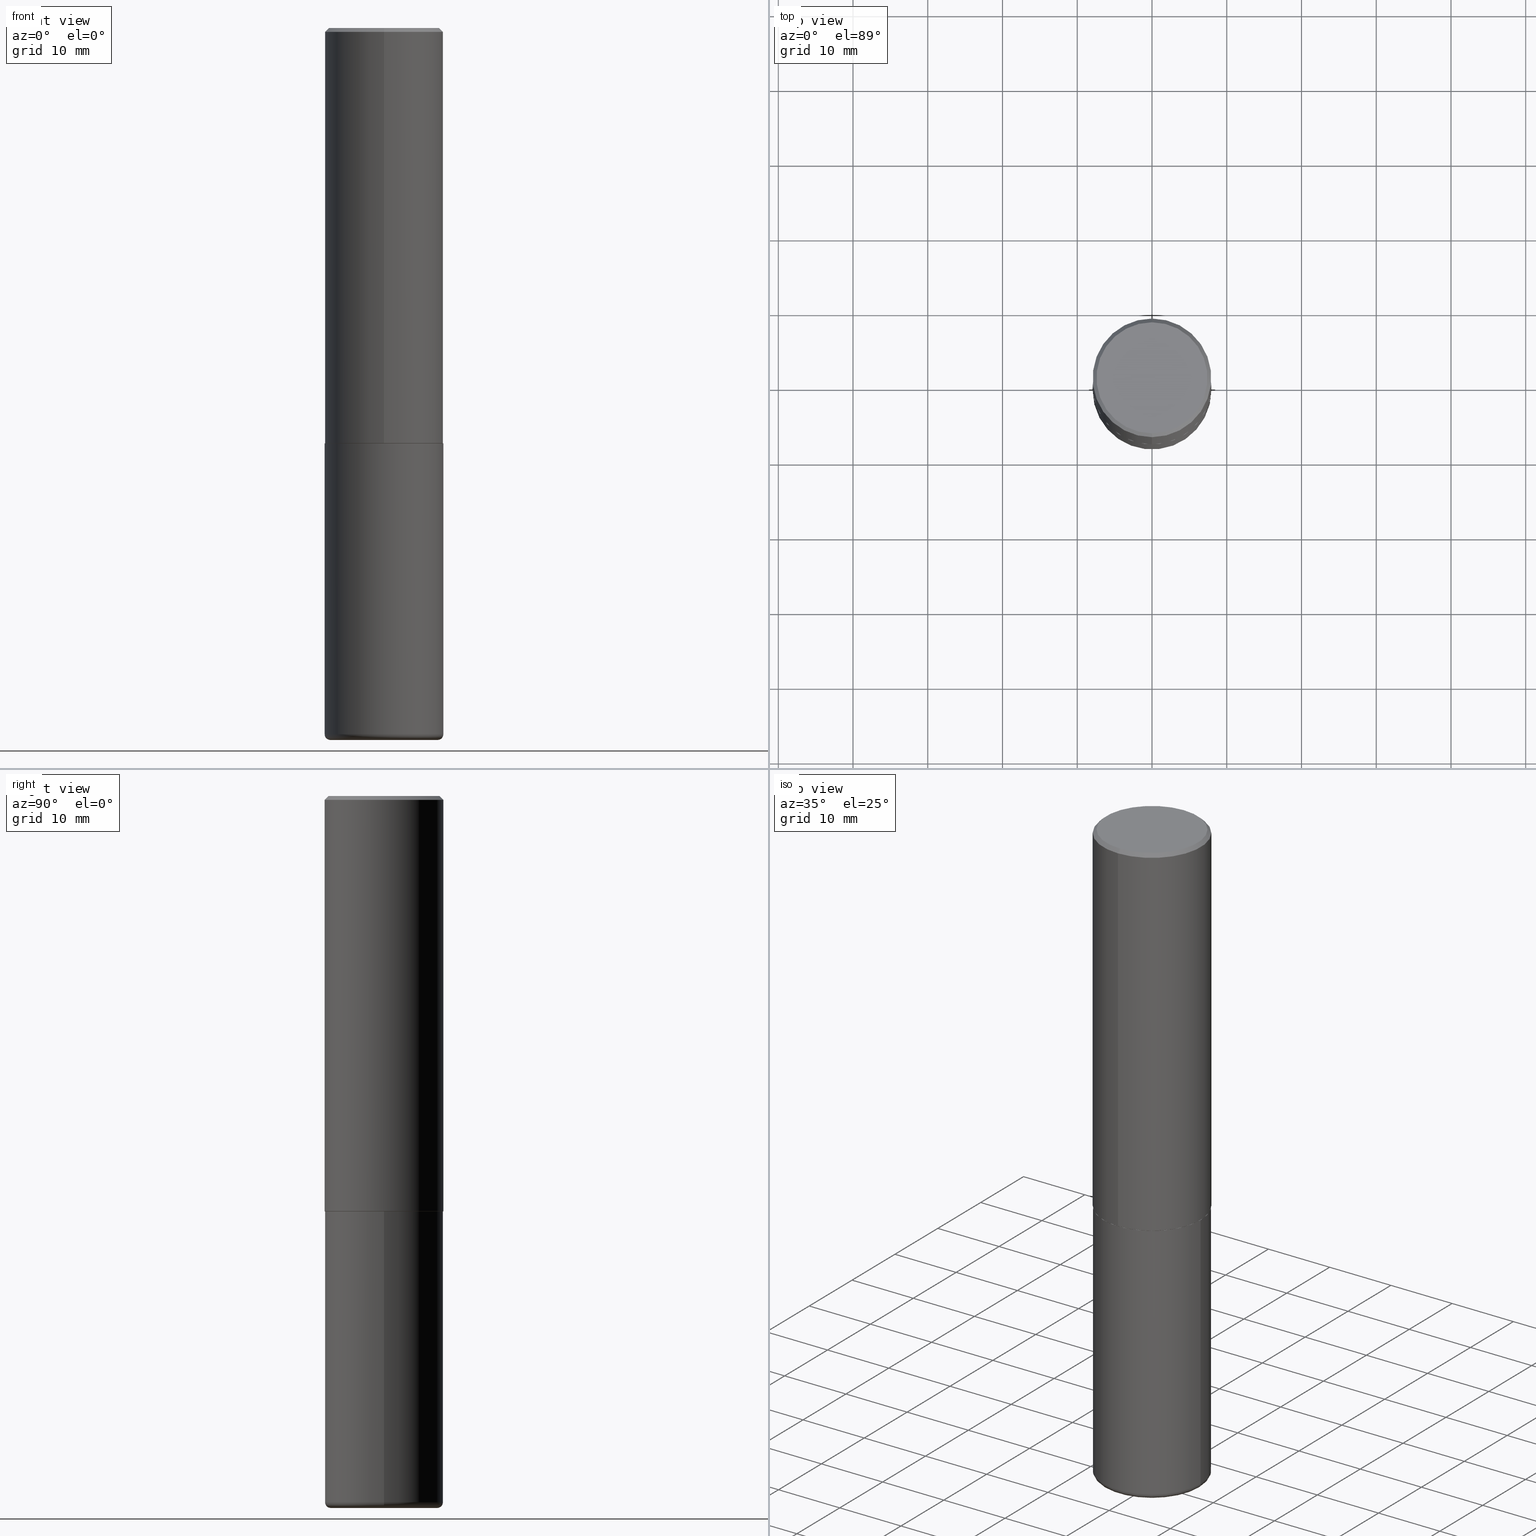
[diagram: canonical four-view strip — front | top / right | iso, engineering-drawing reading convention]
A machine part, canonical four-view strip (front | top / right | iso — engineering-drawing reading convention). The complete STEP part file that produces these views, byte-faithful:
ISO-10303-21;
HEADER;
FILE_DESCRIPTION (( 'STEP AP203' ),
    '1' );
FILE_NAME ('77214.STEP',
    '2024-03-06T16:27:43',
    ( '' ),
    ( '' ),
    'SwSTEP 2.0',
    'SolidWorks 2023',
    '' );
FILE_SCHEMA (( 'CONFIG_CONTROL_DESIGN' ));
ENDSEC;

DATA;
#1 = ADVANCED_FACE ( 'NONE', ( #411 ), #273, .T. ) ;
#2 = DATE_TIME_ROLE ( 'creation_date' ) ;
#3 = VERTEX_POINT ( 'NONE', #96 ) ;
#4 = PRODUCT_DEFINITION_SHAPE ( 'NONE', 'NONE',  #299 ) ;
#5 = DIRECTION ( 'NONE',  ( -2.444624669075078147E-29, 3.492690191230049832E-15, 1.000000000000000000 ) ) ;
#6 = CARTESIAN_POINT ( 'NONE',  ( 2.182175836776957953E-15, 0.3124999999999998890, -0.02000000000000116268 ) ) ;
#7 = CIRCLE ( 'NONE', #77, 0.3124999999999999445 ) ;
#8 = ADVANCED_FACE ( 'NONE', ( #327 ), #62, .F. ) ;
#9 = DIRECTION ( 'NONE',  ( -2.445468806185136597E-29, 3.491481338843145583E-15, 1.000000000000000000 ) ) ;
#10 = LINE ( 'NONE', #325, #418 ) ;
#11 = SECURITY_CLASSIFICATION_LEVEL ( 'unclassified' ) ;
#12 = DIRECTION ( 'NONE',  ( 5.024295867789263036E-15, 0.7071067811867189912, 0.7071067811863760433 ) ) ;
#13 = EDGE_CURVE ( 'NONE', #37, #261, #178, .T. ) ;
#14 = VERTEX_POINT ( 'NONE', #283 ) ;
#15 = CARTESIAN_POINT ( 'NONE',  ( -6.347385878346910481E-46, 9.068652819265783359E-32, 2.596466426377198562E-17 ) ) ;
#16 = COORDINATED_UNIVERSAL_TIME_OFFSET ( 5, 0, .BEHIND. ) ;
#17 = DIRECTION ( 'NONE',  ( 4.937700262164543309E-15, 0.7071067811865444641, -0.7071067811865505703 ) ) ;
#18 = APPLICATION_CONTEXT ( 'configuration controlled 3d designs of mechanical parts and assemblies' ) ;
#19 = CIRCLE ( 'NONE', #349, 0.3125000000000000000 ) ;
#20 = EDGE_CURVE ( 'NONE', #161, #70, #355, .T. ) ;
#21 = EDGE_CURVE ( 'NONE', #261, #79, #39, .T. ) ;
#22 = CC_DESIGN_PERSON_AND_ORGANIZATION_ASSIGNMENT ( #194, #164, ( #175 ) ) ;
#23 = AXIS2_PLACEMENT_3D ( 'NONE', #330, #112, #168 ) ;
#24 = DIRECTION ( 'NONE',  ( -2.445468806185136597E-29, 3.491481338843145583E-15, 1.000000000000000000 ) ) ;
#25 = ADVANCED_FACE ( 'NONE', ( #352 ), #266, .T. ) ;
#26 = EDGE_CURVE ( 'NONE', #147, #14, #346, .T. ) ;
#27 = VECTOR ( 'NONE', #197, 39.37007874015748143 ) ;
#28 = CC_DESIGN_APPROVAL ( #276, ( #299 ) ) ;
#29 = CALENDAR_DATE ( 2024, 6, 3 ) ;
#30 = PERSON ( 'UNSPECIFIED', 'UNSPECIFIED', 'UNSPECIFIED', ('UNSPECIFIED'), ('UNSPECIFIED'), ('UNSPECIFIED') ) ;
#31 = DATE_AND_TIME ( #29, #380 ) ;
#32 = DIRECTION ( 'NONE',  ( 0.000000000000000000, 0.000000000000000000, 1.000000000000000000 ) ) ;
#33 = CC_DESIGN_PERSON_AND_ORGANIZATION_ASSIGNMENT ( #141, #269, ( #299 ) ) ;
#34 = AXIS2_PLACEMENT_3D ( 'NONE', #298, #9, #43 ) ;
#35 = ORIENTED_EDGE ( 'NONE', *, *, #240, .T. ) ;
#36 = CARTESIAN_POINT ( 'NONE',  ( 0.3125000000000001665, -1.517048641727345766E-14, -3.719999999999999751 ) ) ;
#37 = VERTEX_POINT ( 'NONE', #58 ) ;
#38 = CARTESIAN_POINT ( 'NONE',  ( 0.000000000000000000, 0.000000000000000000, 0.000000000000000000 ) ) ;
#39 = CIRCLE ( 'NONE', #413, 0.03000000000000025910 ) ;
#40 = CARTESIAN_POINT ( 'NONE',  ( 5.347616463601733761E-29, -7.640259793315733910E-15, -2.187500000000000000 ) ) ;
#41 = DIRECTION ( 'NONE',  ( -1.000000000000000000, 7.105427357600994759E-15, 0.000000000000000000 ) ) ;
#42 = ORIENTED_EDGE ( 'NONE', *, *, #26, .T. ) ;
#43 = DIRECTION ( 'NONE',  ( 1.000000000000000000, -6.982962677686269077E-15, 0.000000000000000000 ) ) ;
#44 = ORIENTED_EDGE ( 'NONE', *, *, #403, .F. ) ;
#45 = LINE ( 'NONE', #173, #84 ) ;
#46 = AXIS2_PLACEMENT_3D ( 'NONE', #354, #260, #190 ) ;
#47 = CYLINDRICAL_SURFACE ( 'NONE', #23, 0.3125000000000000000 ) ;
#48 = CYLINDRICAL_SURFACE ( 'NONE', #397, 0.3125000000000001665 ) ;
#49 = APPROVAL_DATE_TIME ( #369, #115 ) ;
#50 = AXIS2_PLACEMENT_3D ( 'NONE', #177, #301, #281 ) ;
#51 = MECHANICAL_CONTEXT ( 'NONE', #341, 'mechanical' ) ;
#52 = DIRECTION ( 'NONE',  ( -6.982962677686265133E-15, -1.000000000000000000, 3.496765431890257708E-15 ) ) ;
#53 = AXIS2_PLACEMENT_3D ( 'NONE', #395, #229, #292 ) ;
#54 = AXIS2_PLACEMENT_3D ( 'NONE', #200, #95, #219 ) ;
#55 = APPROVAL ( #415, 'UNSPECIFIED' ) ;
#56 = ORIENTED_EDGE ( 'NONE', *, *, #166, .F. ) ;
#57 = ORIENTED_EDGE ( 'NONE', *, *, #145, .F. ) ;
#58 = CARTESIAN_POINT ( 'NONE',  ( 0.2824999999999999734, -1.506574197710817060E-14, -3.750000000000000888 ) ) ;
#59 = EDGE_CURVE ( 'NONE', #222, #147, #285, .T. ) ;
#60 = TOROIDAL_SURFACE ( 'NONE', #160, 0.2825000000000000289, 0.03000000000000024175 ) ;
#61 = EDGE_LOOP ( 'NONE', ( #251, #232, #312, #417 ) ) ;
#62 = PLANE ( 'NONE',  #212 ) ;
#63 = ORIENTED_EDGE ( 'NONE', *, *, #268, .T. ) ;
#64 = EDGE_LOOP ( 'NONE', ( #373, #356 ) ) ;
#65 = CARTESIAN_POINT ( 'NONE',  ( 9.170508023194263359E-29, -1.309305502066179899E-14, -3.750000000000000888 ) ) ;
#66 = ORIENTED_EDGE ( 'NONE', *, *, #336, .T. ) ;
#67 = AXIS2_PLACEMENT_3D ( 'NONE', #245, #151, #131 ) ;
#68 = LOCAL_TIME ( 11, 27, 43.00000000000000000, #16 ) ;
#69 = PLANE ( 'NONE',  #215 ) ;
#70 = VERTEX_POINT ( 'NONE', #317 ) ;
#71 = CARTESIAN_POINT ( 'NONE',  ( -0.3125000000000000000, -8.092516955357627487E-15, -2.187500000000000000 ) ) ;
#72 = DIRECTION ( 'NONE',  ( 1.000000000000000000, -6.982962677686269077E-15, 0.000000000000000000 ) ) ;
#73 = EDGE_CURVE ( 'NONE', #37, #129, #277, .T. ) ;
#74 = ORIENTED_EDGE ( 'NONE', *, *, #90, .T. ) ;
#75 = CARTESIAN_POINT ( 'NONE',  ( 5.347616463601733761E-29, -7.640259793315733910E-15, -2.187500000000000000 ) ) ;
#76 = CARTESIAN_POINT ( 'NONE',  ( 0.3125000000000000000, -2.182175836776958347E-15, 1.523805242436230075E-29 ) ) ;
#77 = AXIS2_PLACEMENT_3D ( 'NONE', #162, #183, #52 ) ;
#78 = FACE_OUTER_BOUND ( 'NONE', #353, .T. ) ;
#79 = VERTEX_POINT ( 'NONE', #171 ) ;
#80 = LINE ( 'NONE', #271, #350 ) ;
#81 = MANIFOLD_SOLID_BREP ( 'Body-Move/Copy2[1]', #135 ) ;
#82 = CARTESIAN_POINT ( 'NONE',  ( 5.347616463601733761E-29, -7.640259793315733910E-15, -2.187500000000000000 ) ) ;
#83 = COORDINATED_UNIVERSAL_TIME_OFFSET ( 5, 0, .BEHIND. ) ;
#84 = VECTOR ( 'NONE', #295, 39.37007874015748143 ) ;
#85 = EDGE_CURVE ( 'NONE', #3, #70, #319, .T. ) ;
#86 = DIRECTION ( 'NONE',  ( -2.444624669075078147E-29, 3.492690191230049832E-15, 1.000000000000000000 ) ) ;
#87 = PERSON_AND_ORGANIZATION ( #30, #343 ) ;
#88 = VECTOR ( 'NONE', #12, 39.37007874015748143 ) ;
#89 =( GEOMETRIC_REPRESENTATION_CONTEXT ( 3 ) GLOBAL_UNCERTAINTY_ASSIGNED_CONTEXT ( ( #324 ) ) GLOBAL_UNIT_ASSIGNED_CONTEXT ( ( #203, #179, #375 ) ) REPRESENTATION_CONTEXT ( 'NONE', 'WORKASPACE' ) );
#90 = EDGE_CURVE ( 'NONE', #129, #258, #300, .T. ) ;
#91 = VERTEX_POINT ( 'NONE', #409 ) ;
#92 = DATE_AND_TIME ( #306, #372 ) ;
#93 = DIRECTION ( 'NONE',  ( 1.000000000000000000, -6.982962677686270655E-15, 0.000000000000000000 ) ) ;
#94 = EDGE_LOOP ( 'NONE', ( #253, #246 ) ) ;
#95 = DIRECTION ( 'NONE',  ( 2.438088387897960049E-29, -3.491481338843145188E-15, -1.000000000000000000 ) ) ;
#96 = CARTESIAN_POINT ( 'NONE',  ( -2.143905624303602430E-15, -0.3125000000000000000, -0.01999999999999897693 ) ) ;
#97 = ORIENTED_EDGE ( 'NONE', *, *, #328, .T. ) ;
#98 = DIRECTION ( 'NONE',  ( -2.444624669075078147E-29, 3.492690191230049832E-15, 1.000000000000000000 ) ) ;
#99 = ORIENTED_EDGE ( 'NONE', *, *, #347, .F. ) ;
#100 = DIRECTION ( 'NONE',  ( -2.444624669075078147E-29, 3.492690191230049832E-15, 1.000000000000000000 ) ) ;
#101 = EDGE_LOOP ( 'NONE', ( #315, #56, #158, #63 ) ) ;
#102 = ADVANCED_FACE ( 'NONE', ( #242 ), #342, .T. ) ;
#103 = DIRECTION ( 'NONE',  ( -6.982962677686265922E-15, -1.000000000000000000, 3.507991003100177457E-15 ) ) ;
#104 = CARTESIAN_POINT ( 'NONE',  ( -6.347385878346910481E-46, 9.068652819265783359E-32, 2.596466426377198562E-17 ) ) ;
#105 = ORIENTED_EDGE ( 'NONE', *, *, #403, .T. ) ;
#106 = CIRCLE ( 'NONE', #388, 0.3114999999999999991 ) ;
#107 = AXIS2_PLACEMENT_3D ( 'NONE', #206, #238, #209 ) ;
#108 = CARTESIAN_POINT ( 'NONE',  ( -2.175192874099218296E-15, -0.3115000000000076597, -2.187499999999998668 ) ) ;
#109 = EDGE_CURVE ( 'NONE', #147, #222, #106, .T. ) ;
#110 = CARTESIAN_POINT ( 'NONE',  ( 5.349463013529986305E-29, -7.637615428719381825E-15, -2.187500000000000000 ) ) ;
#111 = ORIENTED_EDGE ( 'NONE', *, *, #240, .F. ) ;
#112 = DIRECTION ( 'NONE',  ( -2.445468806185136597E-29, 3.491481338843145583E-15, 1.000000000000000000 ) ) ;
#113 = APPROVAL_DATE_TIME ( #304, #276 ) ;
#114 = FACE_OUTER_BOUND ( 'NONE', #234, .T. ) ;
#115 = APPROVAL ( #214, 'UNSPECIFIED' ) ;
#116 = ORIENTED_EDGE ( 'NONE', *, *, #21, .T. ) ;
#117 = CLOSED_SHELL ( 'NONE', ( #316, #303, #102, #313, #127, #25, #204, #155 ) ) ;
#118 = CC_DESIGN_SECURITY_CLASSIFICATION ( #220, ( #175 ) ) ;
#119 = DIRECTION ( 'NONE',  ( 1.000000000000000000, -6.982962677686270655E-15, 0.000000000000000000 ) ) ;
#120 = AXIS2_PLACEMENT_3D ( 'NONE', #331, #393, #163 ) ;
#121 = APPROVAL_ROLE ( '' ) ;
#122 = AXIS2_PLACEMENT_3D ( 'NONE', #40, #100, #290 ) ;
#123 = ORIENTED_EDGE ( 'NONE', *, *, #412, .T. ) ;
#124 = PRODUCT ( '77214', '77214', '', ( #51 ) ) ;
#125 = ORIENTED_EDGE ( 'NONE', *, *, #13, .F. ) ;
#126 = FACE_OUTER_BOUND ( 'NONE', #101, .T. ) ;
#127 = ADVANCED_FACE ( 'NONE', ( #259 ), #48, .T. ) ;
#128 = CARTESIAN_POINT ( 'NONE',  ( 5.347616463601733761E-29, -7.640259793315733910E-15, -2.187500000000000000 ) ) ;
#129 = VERTEX_POINT ( 'NONE', #36 ) ;
#130 = DIRECTION ( 'NONE',  ( 1.000000000000000000, -6.982962677686269077E-15, 0.000000000000000000 ) ) ;
#131 = DIRECTION ( 'NONE',  ( 1.000000000000000000, -6.982962677686273021E-15, 0.000000000000000000 ) ) ;
#132 = ORIENTED_EDGE ( 'NONE', *, *, #59, .T. ) ;
#133 = DIRECTION ( 'NONE',  ( -2.444624669075078147E-29, 3.492690191230049832E-15, 1.000000000000000000 ) ) ;
#134 = CARTESIAN_POINT ( 'NONE',  ( -0.2825000000000000289, -1.098102735197421805E-14, -3.720000000000000195 ) ) ;
#135 = CLOSED_SHELL ( 'NONE', ( #322, #180, #8, #211, #1, #382 ) ) ;
#136 = ORIENTED_EDGE ( 'NONE', *, *, #90, .F. ) ;
#137 = CARTESIAN_POINT ( 'NONE',  ( 9.097143959008706481E-29, -1.298831058049649931E-14, -3.719999999999999751 ) ) ;
#138 = CALENDAR_DATE ( 2024, 6, 3 ) ;
#139 = CARTESIAN_POINT ( 'NONE',  ( -0.2824999999999999734, -1.092681816169284883E-14, -3.750000000000000888 ) ) ;
#140 = CARTESIAN_POINT ( 'NONE',  ( 2.112346210000095049E-15, 0.2924999999999998712, -9.956472166710172595E-16 ) ) ;
#141 = PERSON_AND_ORGANIZATION ( #30, #343 ) ;
#142 = AXIS2_PLACEMENT_3D ( 'NONE', #332, #24, #130 ) ;
#143 = APPLICATION_PROTOCOL_DEFINITION ( 'international standard', 'config_control_design', 1994, #18 ) ;
#144 = PERSON_AND_ORGANIZATION ( #30, #343 ) ;
#145 = EDGE_CURVE ( 'NONE', #222, #91, #156, .T. ) ;
#146 = CALENDAR_DATE ( 2024, 6, 3 ) ;
#147 = VERTEX_POINT ( 'NONE', #284 ) ;
#148 = APPROVAL_DATE_TIME ( #31, #55 ) ;
#149 = VECTOR ( 'NONE', #272, 39.37007874015748143 ) ;
#150 = AXIS2_PLACEMENT_3D ( 'NONE', #153, #386, #314 ) ;
#151 = DIRECTION ( 'NONE',  ( -6.982962677686266711E-15, -1.000000000000000000, 3.491481338843145583E-15 ) ) ;
#152 = ORIENTED_EDGE ( 'NONE', *, *, #256, .T. ) ;
#153 = CARTESIAN_POINT ( 'NONE',  ( 9.097143959008708723E-29, -1.298831058049650089E-14, -3.720000000000000195 ) ) ;
#154 = ORIENTED_EDGE ( 'NONE', *, *, #247, .T. ) ;
#155 = ADVANCED_FACE ( 'NONE', ( #291 ), #392, .F. ) ;
#156 = LINE ( 'NONE', #357, #27 ) ;
#157 = DIRECTION ( 'NONE',  ( -6.982962677686265133E-15, -1.000000000000000000, 3.492690191230049438E-15 ) ) ;
#158 = ORIENTED_EDGE ( 'NONE', *, *, #20, .T. ) ;
#159 = CARTESIAN_POINT ( 'NONE',  ( 0.000000000000000000, 0.000000000000000000, 0.000000000000000000 ) ) ;
#160 = AXIS2_PLACEMENT_3D ( 'NONE', #359, #267, #405 ) ;
#161 = VERTEX_POINT ( 'NONE', #140 ) ;
#162 = CARTESIAN_POINT ( 'NONE',  ( 4.889249338150173284E-31, -6.985380382460124119E-17, -0.02000000000000006981 ) ) ;
#163 = DIRECTION ( 'NONE',  ( 6.982962677686265133E-15, 1.000000000000000000, -3.496765431890257708E-15 ) ) ;
#164 = PERSON_AND_ORGANIZATION_ROLE ( 'design_supplier' ) ;
#165 = DIRECTION ( 'NONE',  ( -2.444624669075078147E-29, 3.492690191230049832E-15, 1.000000000000000000 ) ) ;
#166 = EDGE_CURVE ( 'NONE', #161, #275, #174, .T. ) ;
#167 = ORIENTED_EDGE ( 'NONE', *, *, #256, .F. ) ;
#168 = DIRECTION ( 'NONE',  ( 1.000000000000000000, -6.982962677686266711E-15, 4.876176775795936353E-29 ) ) ;
#169 = FACE_OUTER_BOUND ( 'NONE', #289, .T. ) ;
#170 = PERSON_AND_ORGANIZATION_ROLE ( 'classification_officer' ) ;
#171 = CARTESIAN_POINT ( 'NONE',  ( -0.3125000000000001665, -1.076786453124618465E-14, -3.719999999999999751 ) ) ;
#172 = EDGE_LOOP ( 'NONE', ( #111, #384, #74, #99 ) ) ;
#173 = CARTESIAN_POINT ( 'NONE',  ( -0.3125000000000000000, 2.220446049250313081E-15, -1.537167215704658232E-29 ) ) ;
#174 = CIRCLE ( 'NONE', #379, 0.2924999999999998712 ) ;
#175 = PRODUCT_DEFINITION_FORMATION_WITH_SPECIFIED_SOURCE ( 'ANY', '', #124, .NOT_KNOWN. ) ;
#176 = EDGE_CURVE ( 'NONE', #261, #37, #407, .T. ) ;
#177 = CARTESIAN_POINT ( 'NONE',  ( 2.042516583223232145E-15, 0.2924999999999998712, -1.008629548802903049E-15 ) ) ;
#178 = CIRCLE ( 'NONE', #339, 0.2824999999999999734 ) ;
#179 =( NAMED_UNIT ( * ) PLANE_ANGLE_UNIT ( ) SI_UNIT ( $, .RADIAN. ) );
#180 = ADVANCED_FACE ( 'NONE', ( #78 ), #60, .T. ) ;
#181 = DIRECTION ( 'NONE',  ( 2.444624669075078147E-29, -3.492690191230049832E-15, -1.000000000000000000 ) ) ;
#182 = PERSON_AND_ORGANIZATION ( #30, #343 ) ;
#183 = DIRECTION ( 'NONE',  ( -2.444624669075078147E-29, 3.492690191230049832E-15, 1.000000000000000000 ) ) ;
#184 = PRODUCT_RELATED_PRODUCT_CATEGORY ( 'detail', '', ( #124 ) ) ;
#185 = ORIENTED_EDGE ( 'NONE', *, *, #344, .F. ) ;
#186 = AXIS2_PLACEMENT_3D ( 'NONE', #239, #181, #337 ) ;
#187 = AXIS2_PLACEMENT_3D ( 'NONE', #381, #32, #308 ) ;
#188 = CARTESIAN_POINT ( 'NONE',  ( -2.075300644325887099E-15, -0.2924999999999998712, 1.047576545198561206E-15 ) ) ;
#189 = ORIENTED_EDGE ( 'NONE', *, *, #59, .F. ) ;
#190 = DIRECTION ( 'NONE',  ( -6.982962677686265922E-15, -1.000000000000000000, 3.507991003100177457E-15 ) ) ;
#191 = ORIENTED_EDGE ( 'NONE', *, *, #336, .F. ) ;
#192 = ADVANCED_BREP_SHAPE_REPRESENTATION ( '77214', ( #81, #217, #187 ), #89 ) ;
#193 = DIRECTION ( 'NONE',  ( -6.982962677686265922E-15, -1.000000000000000000, 3.492690191230049832E-15 ) ) ;
#194 = PERSON_AND_ORGANIZATION ( #30, #343 ) ;
#195 = AXIS2_PLACEMENT_3D ( 'NONE', #404, #270, #119 ) ;
#196 = ORIENTED_EDGE ( 'NONE', *, *, #109, .F. ) ;
#197 = DIRECTION ( 'NONE',  ( -4.937700262165728178E-15, -0.7071067811867141062, 0.7071067811863809283 ) ) ;
#198 = DIRECTION ( 'NONE',  ( -2.444624669075077866E-29, 3.492690191230049832E-15, 1.000000000000000000 ) ) ;
#199 = DIRECTION ( 'NONE',  ( 1.000000000000000000, -6.982962677686266711E-15, 4.876176775795936353E-29 ) ) ;
#200 = CARTESIAN_POINT ( 'NONE',  ( 4.105979019423556328E-29, -2.034574880915099628E-14, -3.750000000000000000 ) ) ;
#201 = COORDINATED_UNIVERSAL_TIME_OFFSET ( 5, 0, .BEHIND. ) ;
#202 = CARTESIAN_POINT ( 'NONE',  ( 2.220446049250313475E-15, 0.3125000000000001665, -1.091465684759391066E-15 ) ) ;
#203 =( CONVERSION_BASED_UNIT ( 'INCH', #370 ) LENGTH_UNIT ( ) NAMED_UNIT ( #305 ) );
#204 = ADVANCED_FACE ( 'NONE', ( #114 ), #69, .F. ) ;
#205 = CARTESIAN_POINT ( 'NONE',  ( 0.3125000000000000000, -9.819791265496340172E-15, -2.187500000000000000 ) ) ;
#206 = CARTESIAN_POINT ( 'NONE',  ( 5.345171838932658035E-29, -7.636767103124503877E-15, -2.186500000000000110 ) ) ;
#207 = EDGE_CURVE ( 'NONE', #258, #223, #334, .T. ) ;
#208 = ORIENTED_EDGE ( 'NONE', *, *, #73, .F. ) ;
#209 = DIRECTION ( 'NONE',  ( -6.982962677686265922E-15, -1.000000000000000000, 3.496765431890253764E-15 ) ) ;
#210 = DATE_AND_TIME ( #293, #68 ) ;
#211 = ADVANCED_FACE ( 'NONE', ( #333 ), #47, .T. ) ;
#212 = AXIS2_PLACEMENT_3D ( 'NONE', #230, #216, #361 ) ;
#213 = APPROVAL_PERSON_ORGANIZATION ( #144, #276, #335 ) ;
#214 = APPROVAL_STATUS ( 'not_yet_approved' ) ;
#215 = AXIS2_PLACEMENT_3D ( 'NONE', #75, #198, #193 ) ;
#216 = DIRECTION ( 'NONE',  ( 2.438088387897960049E-29, -3.491481338843145188E-15, -1.000000000000000000 ) ) ;
#217 = MANIFOLD_SOLID_BREP ( 'Body-Move/Copy2[2]', #117 ) ;
#218 = ORIENTED_EDGE ( 'NONE', *, *, #26, .F. ) ;
#219 = DIRECTION ( 'NONE',  ( -1.000000000000000000, 6.982962677686265922E-15, -4.876176775795935793E-29 ) ) ;
#220 = SECURITY_CLASSIFICATION ( '', '', #11 ) ;
#221 = DIRECTION ( 'NONE',  ( -2.445468806185136597E-29, 3.491481338843145583E-15, 1.000000000000000000 ) ) ;
#222 = VERTEX_POINT ( 'NONE', #108 ) ;
#223 = VERTEX_POINT ( 'NONE', #71 ) ;
#224 = CC_DESIGN_DATE_AND_TIME_ASSIGNMENT ( #210, #368, ( #220 ) ) ;
#225 = PERSON_AND_ORGANIZATION_ROLE ( 'creator' ) ;
#226 = DIRECTION ( 'NONE',  ( -4.851104656540959542E-15, -0.7071067811865493491, -0.7071067811865456854 ) ) ;
#227 = CARTESIAN_POINT ( 'NONE',  ( 2.213340621892764926E-15, 0.3114999999999923386, -2.187500000000000888 ) ) ;
#228 = ORIENTED_EDGE ( 'NONE', *, *, #145, .T. ) ;
#229 = DIRECTION ( 'NONE',  ( -2.444624669075078147E-29, 3.492690191230049832E-15, 1.000000000000000000 ) ) ;
#230 = CARTESIAN_POINT ( 'NONE',  ( 5.349463013529986305E-29, -7.637615428719381825E-15, -2.187500000000000000 ) ) ;
#231 = CIRCLE ( 'NONE', #280, 0.2924999999999998712 ) ;
#232 = ORIENTED_EDGE ( 'NONE', *, *, #176, .T. ) ;
#233 = DIRECTION ( 'NONE',  ( -6.982962677686265133E-15, -1.000000000000000000, 3.492690191230049438E-15 ) ) ;
#234 = EDGE_LOOP ( 'NONE', ( #189, #196 ) ) ;
#235 = DIRECTION ( 'NONE',  ( 1.000000000000000000, -6.982962677686269077E-15, 0.000000000000000000 ) ) ;
#236 = DIRECTION ( 'NONE',  ( -2.444624669075078147E-29, 3.492690191230049832E-15, 1.000000000000000000 ) ) ;
#237 = CIRCLE ( 'NONE', #53, 0.3125000000000002776 ) ;
#238 = DIRECTION ( 'NONE',  ( -2.444624669075078147E-29, 3.492690191230049832E-15, 1.000000000000000000 ) ) ;
#239 = CARTESIAN_POINT ( 'NONE',  ( 4.889249338150173284E-31, -6.985380382460124119E-17, -0.02000000000000006981 ) ) ;
#240 = EDGE_CURVE ( 'NONE', #79, #223, #45, .T. ) ;
#241 =( LENGTH_UNIT ( ) NAMED_UNIT ( * ) SI_UNIT ( $, .METRE. ) );
#242 = FACE_OUTER_BOUND ( 'NONE', #387, .T. ) ;
#243 = CIRCLE ( 'NONE', #142, 0.3125000000000000000 ) ;
#244 = APPROVAL_PERSON_ORGANIZATION ( #182, #55, #121 ) ;
#245 = CARTESIAN_POINT ( 'NONE',  ( 0.2825000000000000289, -1.496099753694287092E-14, -3.720000000000000195 ) ) ;
#246 = ORIENTED_EDGE ( 'NONE', *, *, #344, .T. ) ;
#247 = EDGE_CURVE ( 'NONE', #129, #79, #19, .T. ) ;
#248 = CC_DESIGN_PERSON_AND_ORGANIZATION_ASSIGNMENT ( #262, #225, ( #175 ) ) ;
#249 = VECTOR ( 'NONE', #366, 39.37007874015748143 ) ;
#250 = AXIS2_PLACEMENT_3D ( 'NONE', #110, #363, #72 ) ;
#251 = ORIENTED_EDGE ( 'NONE', *, *, #21, .F. ) ;
#252 = DIRECTION ( 'NONE',  ( -2.445468806185136597E-29, 3.491481338843145583E-15, 1.000000000000000000 ) ) ;
#253 = ORIENTED_EDGE ( 'NONE', *, *, #166, .T. ) ;
#254 = VECTOR ( 'NONE', #17, 39.37007874015748143 ) ;
#255 = CC_DESIGN_APPROVAL ( #115, ( #220 ) ) ;
#256 = EDGE_CURVE ( 'NONE', #14, #70, #364, .T. ) ;
#257 = EDGE_LOOP ( 'NONE', ( #123, #152, #345, #44 ) ) ;
#258 = VERTEX_POINT ( 'NONE', #205 ) ;
#259 = FACE_OUTER_BOUND ( 'NONE', #318, .T. ) ;
#260 = DIRECTION ( 'NONE',  ( -2.444624669075078147E-29, 3.492690191230049832E-15, 1.000000000000000000 ) ) ;
#261 = VERTEX_POINT ( 'NONE', #139 ) ;
#262 = PERSON_AND_ORGANIZATION ( #30, #343 ) ;
#263 = CC_DESIGN_PERSON_AND_ORGANIZATION_ASSIGNMENT ( #326, #170, ( #220 ) ) ;
#264 = DIRECTION ( 'NONE',  ( -2.444624669075078147E-29, 3.492690191230049832E-15, 1.000000000000000000 ) ) ;
#265 = DIRECTION ( 'NONE',  ( -6.982962677686266711E-15, -1.000000000000000000, 3.492690191230050227E-15 ) ) ;
#266 = CONICAL_SURFACE ( 'NONE', #371, 0.3114999999999999991, 0.7853981633976873100 ) ;
#267 = DIRECTION ( 'NONE',  ( -2.445468806185136597E-29, 3.491481338843145583E-15, 1.000000000000000000 ) ) ;
#268 = EDGE_CURVE ( 'NONE', #70, #3, #7, .T. ) ;
#269 = PERSON_AND_ORGANIZATION_ROLE ( 'creator' ) ;
#270 = DIRECTION ( 'NONE',  ( -2.445468806185136597E-29, 3.491481338843145583E-15, 1.000000000000000000 ) ) ;
#271 = CARTESIAN_POINT ( 'NONE',  ( -2.182175836776959136E-15, -0.3125000000000001665, 1.091465684759391066E-15 ) ) ;
#272 = DIRECTION ( 'NONE',  ( -2.445468806185136877E-29, 3.491481338843145188E-15, 1.000000000000000000 ) ) ;
#273 = TOROIDAL_SURFACE ( 'NONE', #150, 0.2825000000000000289, 0.03000000000000024175 ) ;
#274 = SHAPE_DEFINITION_REPRESENTATION ( #4, #192 ) ;
#275 = VERTEX_POINT ( 'NONE', #188 ) ;
#276 = APPROVAL ( #376, 'UNSPECIFIED' ) ;
#277 = CIRCLE ( 'NONE', #67, 0.03000000000000025910 ) ;
#278 = ORIENTED_EDGE ( 'NONE', *, *, #247, .F. ) ;
#279 = DESIGN_CONTEXT ( 'detailed design', #18, 'design' ) ;
#280 = AXIS2_PLACEMENT_3D ( 'NONE', #15, #133, #265 ) ;
#281 = DIRECTION ( 'NONE',  ( 6.982962677686265922E-15, 1.000000000000000000, -3.492690191230049832E-15 ) ) ;
#282 = FACE_OUTER_BOUND ( 'NONE', #309, .T. ) ;
#283 = CARTESIAN_POINT ( 'NONE',  ( 2.220446049250340691E-15, 0.3124999999999926170, -2.186500000000000998 ) ) ;
#284 = CARTESIAN_POINT ( 'NONE',  ( 2.216893335571566614E-15, 0.3114999999999923386, -2.187500000000000888 ) ) ;
#285 = CIRCLE ( 'NONE', #46, 0.3114999999999999991 ) ;
#286 = CYLINDRICAL_SURFACE ( 'NONE', #358, 0.3125000000000000000 ) ;
#287 = CC_DESIGN_APPROVAL ( #55, ( #175 ) ) ;
#288 = EDGE_CURVE ( 'NONE', #79, #129, #243, .T. ) ;
#289 = EDGE_LOOP ( 'NONE', ( #154, #35, #329, #136 ) ) ;
#290 = DIRECTION ( 'NONE',  ( -6.982962677686265922E-15, -1.000000000000000000, 3.507991003100177457E-15 ) ) ;
#291 = FACE_OUTER_BOUND ( 'NONE', #94, .T. ) ;
#292 = DIRECTION ( 'NONE',  ( -6.982962677686265922E-15, -1.000000000000000000, 3.496765431890253764E-15 ) ) ;
#293 = CALENDAR_DATE ( 2024, 6, 3 ) ;
#294 = EDGE_LOOP ( 'NONE', ( #125, #391 ) ) ;
#295 = DIRECTION ( 'NONE',  ( -2.445468806185136877E-29, 3.491481338843145188E-15, 1.000000000000000000 ) ) ;
#296 = CONICAL_SURFACE ( 'NONE', #120, 0.3124999999999999445, 0.7853981633974473908 ) ;
#297 = CARTESIAN_POINT ( 'NONE',  ( 4.889249338150173284E-31, -6.985380382460124119E-17, -0.02000000000000006981 ) ) ;
#298 = CARTESIAN_POINT ( 'NONE',  ( 5.349463013529986305E-29, -7.637615428719381825E-15, -2.187500000000000000 ) ) ;
#299 = PRODUCT_DEFINITION ( 'UNKNOWN', '', #175, #279 ) ;
#300 = LINE ( 'NONE', #76, #149 ) ;
#301 = DIRECTION ( 'NONE',  ( 2.444624669075077866E-29, -3.492690191230049832E-15, -1.000000000000000000 ) ) ;
#302 = LOCAL_TIME ( 11, 27, 43.00000000000000000, #201 ) ;
#303 = ADVANCED_FACE ( 'NONE', ( #320 ), #400, .T. ) ;
#304 = DATE_AND_TIME ( #138, #302 ) ;
#305 = DIMENSIONAL_EXPONENTS ( 1.000000000000000000, 0.000000000000000000, 0.000000000000000000, 0.000000000000000000, 0.000000000000000000, 0.000000000000000000, 0.000000000000000000 ) ;
#306 = CALENDAR_DATE ( 2024, 6, 3 ) ;
#307 = PERSON_AND_ORGANIZATION_ROLE ( 'design_owner' ) ;
#308 = DIRECTION ( 'NONE',  ( 1.000000000000000000, 0.000000000000000000, 0.000000000000000000 ) ) ;
#309 = EDGE_LOOP ( 'NONE', ( #132, #42, #340, #57 ) ) ;
#310 = AXIS2_PLACEMENT_3D ( 'NONE', #360, #98, #157 ) ;
#311 = PERSON_AND_ORGANIZATION ( #30, #343 ) ;
#312 = ORIENTED_EDGE ( 'NONE', *, *, #73, .T. ) ;
#313 = ADVANCED_FACE ( 'NONE', ( #126 ), #296, .T. ) ;
#314 = DIRECTION ( 'NONE',  ( 1.000000000000000000, -6.982962677686269077E-15, 4.883557194083113462E-29 ) ) ;
#315 = ORIENTED_EDGE ( 'NONE', *, *, #328, .F. ) ;
#316 = ADVANCED_FACE ( 'NONE', ( #282 ), #367, .T. ) ;
#317 = CARTESIAN_POINT ( 'NONE',  ( 2.182175836776957953E-15, 0.3124999999999998890, -0.02000000000000116268 ) ) ;
#318 = EDGE_LOOP ( 'NONE', ( #167, #66, #105, #394 ) ) ;
#319 = CIRCLE ( 'NONE', #398, 0.3124999999999999445 ) ;
#320 = FACE_OUTER_BOUND ( 'NONE', #257, .T. ) ;
#321 = LOCAL_TIME ( 11, 27, 43.00000000000000000, #83 ) ;
#322 = ADVANCED_FACE ( 'NONE', ( #169 ), #286, .T. ) ;
#323 = ORIENTED_EDGE ( 'NONE', *, *, #20, .F. ) ;
#324 = UNCERTAINTY_MEASURE_WITH_UNIT (LENGTH_MEASURE( 1.000000000000000082E-05 ), #203, 'distance_accuracy_value', 'NONE');
#325 = CARTESIAN_POINT ( 'NONE',  ( -2.143905624303602430E-15, -0.3125000000000000000, -0.01999999999999897693 ) ) ;
#326 = PERSON_AND_ORGANIZATION ( #30, #343 ) ;
#327 = FACE_OUTER_BOUND ( 'NONE', #64, .T. ) ;
#328 = EDGE_CURVE ( 'NONE', #275, #3, #10, .T. ) ;
#329 = ORIENTED_EDGE ( 'NONE', *, *, #207, .F. ) ;
#330 = CARTESIAN_POINT ( 'NONE',  ( 0.000000000000000000, 0.000000000000000000, 0.000000000000000000 ) ) ;
#331 = CARTESIAN_POINT ( 'NONE',  ( 4.889249338150173284E-31, -6.985380382460124119E-17, -0.02000000000000006981 ) ) ;
#332 = CARTESIAN_POINT ( 'NONE',  ( 9.097143959008706481E-29, -1.298831058049649931E-14, -3.719999999999999751 ) ) ;
#333 = FACE_OUTER_BOUND ( 'NONE', #172, .T. ) ;
#334 = CIRCLE ( 'NONE', #34, 0.3125000000000000000 ) ;
#335 = APPROVAL_ROLE ( '' ) ;
#336 = EDGE_CURVE ( 'NONE', #14, #91, #237, .T. ) ;
#337 = DIRECTION ( 'NONE',  ( 6.982962677686265133E-15, 1.000000000000000000, -3.496765431890257708E-15 ) ) ;
#338 = COORDINATED_UNIVERSAL_TIME_OFFSET ( 5, 0, .BEHIND. ) ;
#339 = AXIS2_PLACEMENT_3D ( 'NONE', #65, #221, #93 ) ;
#340 = ORIENTED_EDGE ( 'NONE', *, *, #412, .F. ) ;
#341 = APPLICATION_CONTEXT ( 'configuration controlled 3d designs of mechanical parts and assemblies' ) ;
#342 = CONICAL_SURFACE ( 'NONE', #186, 0.3124999999999999445, 0.7853981633974473908 ) ;
#343 = ORGANIZATION ( 'UNSPECIFIED', 'UNSPECIFIED', '' ) ;
#344 = EDGE_CURVE ( 'NONE', #275, #161, #231, .T. ) ;
#345 = ORIENTED_EDGE ( 'NONE', *, *, #85, .F. ) ;
#346 = LINE ( 'NONE', #227, #88 ) ;
#347 = EDGE_CURVE ( 'NONE', #223, #258, #414, .T. ) ;
#348 = ORIENTED_EDGE ( 'NONE', *, *, #85, .T. ) ;
#349 = AXIS2_PLACEMENT_3D ( 'NONE', #137, #402, #235 ) ;
#350 = VECTOR ( 'NONE', #406, 39.37007874015748143 ) ;
#351 = FACE_OUTER_BOUND ( 'NONE', #294, .T. ) ;
#352 = FACE_OUTER_BOUND ( 'NONE', #362, .T. ) ;
#353 = EDGE_LOOP ( 'NONE', ( #401, #116, #278, #208 ) ) ;
#354 = CARTESIAN_POINT ( 'NONE',  ( 5.347616463601733761E-29, -7.640259793315733910E-15, -2.187500000000000000 ) ) ;
#355 = LINE ( 'NONE', #6, #254 ) ;
#356 = ORIENTED_EDGE ( 'NONE', *, *, #347, .T. ) ;
#357 = CARTESIAN_POINT ( 'NONE',  ( -2.175192874099218296E-15, -0.3115000000000076597, -2.187499999999998668 ) ) ;
#358 = AXIS2_PLACEMENT_3D ( 'NONE', #38, #252, #199 ) ;
#359 = CARTESIAN_POINT ( 'NONE',  ( 9.097143959008708723E-29, -1.298831058049650089E-14, -3.720000000000000195 ) ) ;
#360 = CARTESIAN_POINT ( 'NONE',  ( 0.000000000000000000, 0.000000000000000000, 0.000000000000000000 ) ) ;
#361 = DIRECTION ( 'NONE',  ( -1.000000000000000000, 6.982962677686265922E-15, -4.876176775795935793E-29 ) ) ;
#362 = EDGE_LOOP ( 'NONE', ( #218, #396, #228, #191 ) ) ;
#363 = DIRECTION ( 'NONE',  ( -2.445468806185136597E-29, 3.491481338843145583E-15, 1.000000000000000000 ) ) ;
#364 = LINE ( 'NONE', #202, #249 ) ;
#365 = DIRECTION ( 'NONE',  ( -6.982962677686265133E-15, -1.000000000000000000, 3.496765431890257708E-15 ) ) ;
#366 = DIRECTION ( 'NONE',  ( -2.444624669075078147E-29, 3.492690191230049832E-15, 1.000000000000000000 ) ) ;
#367 = CONICAL_SURFACE ( 'NONE', #122, 0.3114999999999999991, 0.7853981633976873100 ) ;
#368 = DATE_TIME_ROLE ( 'classification_date' ) ;
#369 = DATE_AND_TIME ( #146, #321 ) ;
#370 = LENGTH_MEASURE_WITH_UNIT ( LENGTH_MEASURE( 0.02539999999999999897 ), #241 );
#371 = AXIS2_PLACEMENT_3D ( 'NONE', #128, #165, #390 ) ;
#372 = LOCAL_TIME ( 11, 27, 43.00000000000000000, #338 ) ;
#373 = ORIENTED_EDGE ( 'NONE', *, *, #207, .T. ) ;
#374 = COORDINATED_UNIVERSAL_TIME_OFFSET ( 5, 0, .BEHIND. ) ;
#375 =( NAMED_UNIT ( * ) SI_UNIT ( $, .STERADIAN. ) SOLID_ANGLE_UNIT ( ) );
#376 = APPROVAL_STATUS ( 'not_yet_approved' ) ;
#377 = CC_DESIGN_DATE_AND_TIME_ASSIGNMENT ( #92, #2, ( #299 ) ) ;
#378 = APPROVAL_ROLE ( '' ) ;
#379 = AXIS2_PLACEMENT_3D ( 'NONE', #104, #264, #399 ) ;
#380 = LOCAL_TIME ( 11, 27, 43.00000000000000000, #374 ) ;
#381 = CARTESIAN_POINT ( 'NONE',  ( 0.000000000000000000, 0.000000000000000000, 0.000000000000000000 ) ) ;
#382 = ADVANCED_FACE ( 'NONE', ( #351 ), #385, .T. ) ;
#383 = DIRECTION ( 'NONE',  ( 7.105427357601001859E-15, 1.000000000000000000, -3.491481338843145583E-15 ) ) ;
#384 = ORIENTED_EDGE ( 'NONE', *, *, #288, .T. ) ;
#385 = PLANE ( 'NONE',  #54 ) ;
#386 = DIRECTION ( 'NONE',  ( -2.445468806185136597E-29, 3.491481338843145583E-15, 1.000000000000000000 ) ) ;
#387 = EDGE_LOOP ( 'NONE', ( #185, #97, #348, #323 ) ) ;
#388 = AXIS2_PLACEMENT_3D ( 'NONE', #82, #86, #103 ) ;
#389 = CIRCLE ( 'NONE', #107, 0.3125000000000002776 ) ;
#390 = DIRECTION ( 'NONE',  ( -6.982962677686265922E-15, -1.000000000000000000, 3.507991003100177457E-15 ) ) ;
#391 = ORIENTED_EDGE ( 'NONE', *, *, #176, .F. ) ;
#392 = PLANE ( 'NONE',  #50 ) ;
#393 = DIRECTION ( 'NONE',  ( 2.444624669075078147E-29, -3.492690191230049832E-15, -1.000000000000000000 ) ) ;
#394 = ORIENTED_EDGE ( 'NONE', *, *, #268, .F. ) ;
#395 = CARTESIAN_POINT ( 'NONE',  ( 5.345171838932658035E-29, -7.636767103124503877E-15, -2.186500000000000110 ) ) ;
#396 = ORIENTED_EDGE ( 'NONE', *, *, #109, .T. ) ;
#397 = AXIS2_PLACEMENT_3D ( 'NONE', #159, #5, #233 ) ;
#398 = AXIS2_PLACEMENT_3D ( 'NONE', #297, #236, #365 ) ;
#399 = DIRECTION ( 'NONE',  ( -6.982962677686266711E-15, -1.000000000000000000, 3.492690191230050227E-15 ) ) ;
#400 = CYLINDRICAL_SURFACE ( 'NONE', #310, 0.3125000000000001665 ) ;
#401 = ORIENTED_EDGE ( 'NONE', *, *, #13, .T. ) ;
#402 = DIRECTION ( 'NONE',  ( -2.445468806185136597E-29, 3.491481338843145583E-15, 1.000000000000000000 ) ) ;
#403 = EDGE_CURVE ( 'NONE', #91, #3, #80, .T. ) ;
#404 = CARTESIAN_POINT ( 'NONE',  ( 9.170508023194263359E-29, -1.309305502066179899E-14, -3.750000000000000888 ) ) ;
#405 = DIRECTION ( 'NONE',  ( 1.000000000000000000, -6.982962677686269077E-15, 4.883557194083113462E-29 ) ) ;
#406 = DIRECTION ( 'NONE',  ( -2.444624669075078147E-29, 3.492690191230049832E-15, 1.000000000000000000 ) ) ;
#407 = CIRCLE ( 'NONE', #195, 0.2824999999999999734 ) ;
#408 = APPROVAL_PERSON_ORGANIZATION ( #87, #115, #378 ) ;
#409 = CARTESIAN_POINT ( 'NONE',  ( -2.182175836776906677E-15, -0.3125000000000079381, -2.186499999999998778 ) ) ;
#410 = CC_DESIGN_PERSON_AND_ORGANIZATION_ASSIGNMENT ( #311, #307, ( #124 ) ) ;
#411 = FACE_OUTER_BOUND ( 'NONE', #61, .T. ) ;
#412 = EDGE_CURVE ( 'NONE', #91, #14, #389, .T. ) ;
#413 = AXIS2_PLACEMENT_3D ( 'NONE', #134, #383, #41 ) ;
#414 = CIRCLE ( 'NONE', #250, 0.3125000000000000000 ) ;
#415 = APPROVAL_STATUS ( 'not_yet_approved' ) ;
#416 = APPLICATION_PROTOCOL_DEFINITION ( 'international standard', 'config_control_design', 1994, #341 ) ;
#417 = ORIENTED_EDGE ( 'NONE', *, *, #288, .F. ) ;
#418 = VECTOR ( 'NONE', #226, 39.37007874015748143 ) ;
ENDSEC;
END-ISO-10303-21;
